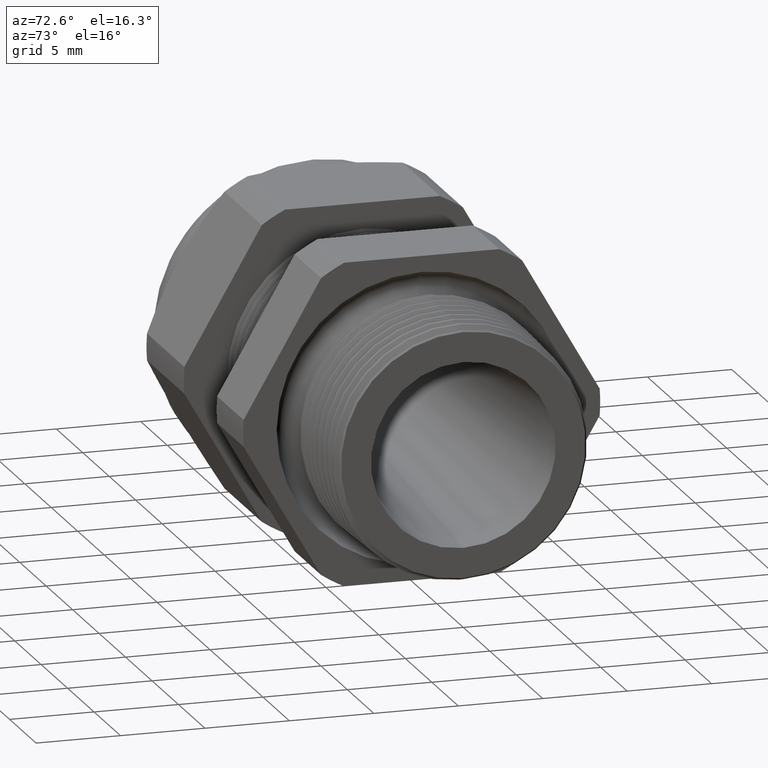
[diagram: clean part render]
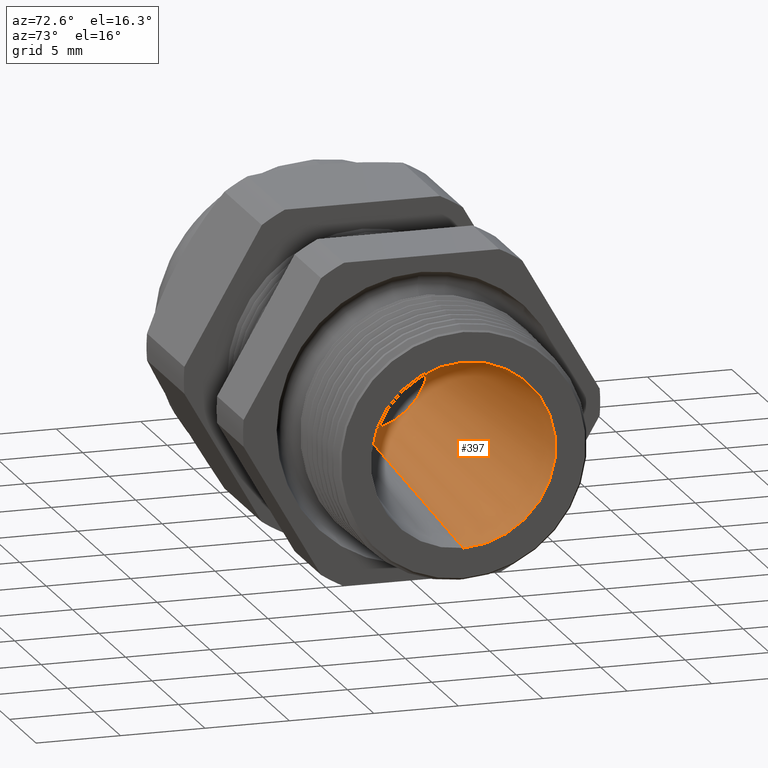
[diagram: same view with one face highlighted and labeled with its STEP entity id]
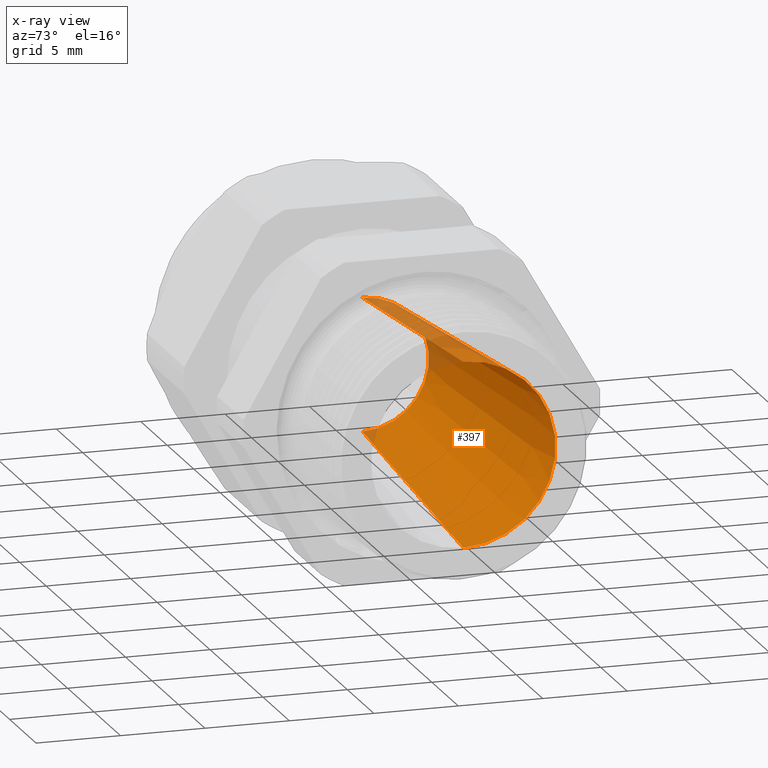
[diagram: x-ray of the same camera — body ghosted, the highlighted face saturated]
A machine part, auxiliary view. The second image highlights one B-rep face of the part: STEP entity #397.
The next image is the same camera in x-ray: the body ghosted, the highlighted face saturated — about 8% of this face is hidden behind the body in this view.
In plain terms, the highlighted conical surface has half-angle 4.594 deg.
Its self-contained STEP definition (entity closure, byte-faithful):
#75 = VERTEX_POINT ( 'NONE', #1384 ) ;
#378 = ORIENTED_EDGE ( 'NONE', *, *, #4175, .T. ) ;
#379 = ORIENTED_EDGE ( 'NONE', *, *, #395, .T. ) ;
#395 = EDGE_CURVE ( 'NONE', #4173, #4179, #1949, .T. ) ;
#397 = ADVANCED_FACE ( 'NONE', ( #2009 ), #2008, .F. ) ;
#398 = EDGE_LOOP ( 'NONE', ( #399, #400, #378, #379 ) ) ;
#399 = ORIENTED_EDGE ( 'NONE', *, *, #4187, .F. ) ;
#400 = ORIENTED_EDGE ( 'NONE', *, *, #401, .F. ) ;
#401 = EDGE_CURVE ( 'NONE', #75, #4155, #2002, .T. ) ;
#1384 = CARTESIAN_POINT ( 'NONE',  ( -0.7508661417322833900, 0.0000000000000000000, -0.1550000000000000000 ) ) ;
#1948 = CARTESIAN_POINT ( 'NONE',  ( 0.0000000000000000000, 0.0000000000000000000, 0.0000000000000000000 ) ) ;
#1949 = CIRCLE ( 'NONE', #2012, 0.2153378781036457400 ) ;
#1999 = DIRECTION ( 'NONE',  ( 0.0000000000000000000, 0.0000000000000000000, -1.000000000000000000 ) ) ;
#2000 = DIRECTION ( 'NONE',  ( 1.000000000000000000, 0.0000000000000000000, 0.0000000000000000000 ) ) ;
#2001 = AXIS2_PLACEMENT_3D ( 'NONE', #2007, #2000, #1999 ) ;
#2002 = CIRCLE ( 'NONE', #2001, 0.1550000000000000000 ) ;
#2003 = DIRECTION ( 'NONE',  ( 0.0000000000000000000, 0.0000000000000000000, -1.000000000000000000 ) ) ;
#2004 = DIRECTION ( 'NONE',  ( 1.000000000000000000, 0.0000000000000000000, 0.0000000000000000000 ) ) ;
#2005 = CARTESIAN_POINT ( 'NONE',  ( -0.7508661417322833900, 0.0000000000000000000, 0.0000000000000000000 ) ) ;
#2006 = AXIS2_PLACEMENT_3D ( 'NONE', #2005, #2004, #2003 ) ;
#2007 = CARTESIAN_POINT ( 'NONE',  ( -0.7508661417322833900, 0.0000000000000000000, 0.0000000000000000000 ) ) ;
#2008 = CONICAL_SURFACE ( 'NONE', #2006, 0.1550000000000000000, 0.08018540344487304300 ) ;
#2009 = FACE_OUTER_BOUND ( 'NONE', #398, .T. ) ;
#2010 = DIRECTION ( 'NONE',  ( 0.0000000000000000000, 0.0000000000000000000, -1.000000000000000000 ) ) ;
#2011 = DIRECTION ( 'NONE',  ( 1.000000000000000000, 0.0000000000000000000, 0.0000000000000000000 ) ) ;
#2012 = AXIS2_PLACEMENT_3D ( 'NONE', #1948, #2011, #2010 ) ;
#3520 = CARTESIAN_POINT ( 'NONE',  ( -0.7508661417322833900, 2.267665485113262000E-017, 0.1550000000000000000 ) ) ;
#3537 = CARTESIAN_POINT ( 'NONE',  ( 0.0000000000000000000, 2.637128431548127100E-017, 0.2153378781036457400 ) ) ;
#3543 = DIRECTION ( 'NONE',  ( 0.9967868727108976100, 0.0000000000000000000, -0.08009950306480641300 ) ) ;
#3544 = VECTOR ( 'NONE', #3543, 39.37007874015748900 ) ;
#3545 = CARTESIAN_POINT ( 'NONE',  ( -0.7508661417322833900, 0.0000000000000000000, -0.1550000000000000000 ) ) ;
#3546 = LINE ( 'NONE', #3545, #3544 ) ;
#3547 = CARTESIAN_POINT ( 'NONE',  ( 0.0000000000000000000, 0.0000000000000000000, -0.2153378781036457400 ) ) ;
#3580 = DIRECTION ( 'NONE',  ( 0.9967868727108976100, 9.809360004160878300E-018, 0.08009950306480641300 ) ) ;
#3581 = VECTOR ( 'NONE', #3580, 39.37007874015748900 ) ;
#3582 = CARTESIAN_POINT ( 'NONE',  ( -0.7508661417322833900, 1.898202538678397300E-017, 0.1550000000000000000 ) ) ;
#3583 = LINE ( 'NONE', #3582, #3581 ) ;
#4155 = VERTEX_POINT ( 'NONE', #3520 ) ;
#4173 = VERTEX_POINT ( 'NONE', #3547 ) ;
#4175 = EDGE_CURVE ( 'NONE', #75, #4173, #3546, .T. ) ;
#4179 = VERTEX_POINT ( 'NONE', #3537 ) ;
#4187 = EDGE_CURVE ( 'NONE', #4155, #4179, #3583, .T. ) ;